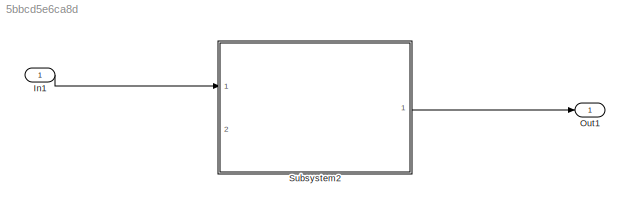
MODEL slx_5bbcd5e6ca8d
KIND model
BLOCK [Inport] In1
  IconDisplay = Port number
BLOCK [Outport] Out1
  IconDisplay = Port number
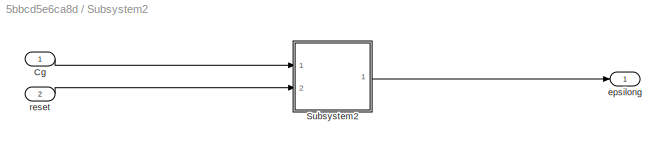
BLOCK [SubSystem] Subsystem2
  Ports = [2, 1]
  RequestExecContextInheritance = off
BLOCK [Inport] Subsystem2/Cg
  IconDisplay = Port number
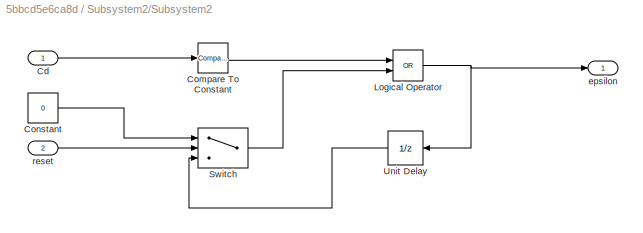
BLOCK [SubSystem] Subsystem2/Subsystem2
  Ports = [2, 1]
  RequestExecContextInheritance = off
BLOCK [Inport] Subsystem2/Subsystem2/Cd
  IconDisplay = Port number
BLOCK [Reference] Subsystem2/Subsystem2/Compare To Constant  REF=simulink/Logic and Bit
Operations/Compare
To Constant
  OutDataTypeStr = boolean
  Ports = [1, 1]
  SourceBlock = simulink/Logic and Bit\nOperations/Compare\nTo Constant
  SourceType = Compare To Constant
  ZeroCross = on
  const = 3.0
  relop = <=
BLOCK [Constant] Subsystem2/Subsystem2/Constant
  Value = 0
BLOCK [Logic] Subsystem2/Subsystem2/Logical Operator
  AllPortsSameDT = off
  Operator = OR
  OutDataTypeStr = boolean
  Ports = [2, 1]
BLOCK [Switch] Subsystem2/Subsystem2/Switch
  Criteria = u2 > Threshold
  InputSameDT = off
  SaturateOnIntegerOverflow = off
BLOCK [UnitDelay] Subsystem2/Subsystem2/Unit Delay
  InputProcessing = Elements as channels (sample based)
  SampleTime = -1
BLOCK [Outport] Subsystem2/Subsystem2/epsilon
  IconDisplay = Port number
BLOCK [Inport] Subsystem2/Subsystem2/reset
  IconDisplay = Port number
  Port = 2
BLOCK [Outport] Subsystem2/epsilong
  IconDisplay = Port number
BLOCK [Inport] Subsystem2/reset
  IconDisplay = Port number
  Port = 2
LINE In1:1 -> Subsystem2:1
LINE Subsystem2/Cg:1 -> Subsystem2/Subsystem2:1
LINE Subsystem2/Subsystem2/Cd:1 -> Subsystem2/Subsystem2/Compare To Constant:1
LINE Subsystem2/Subsystem2/Compare To Constant:1 -> Subsystem2/Subsystem2/Logical Operator:1
LINE Subsystem2/Subsystem2/Constant:1 -> Subsystem2/Subsystem2/Switch:1
NET Subsystem2/Subsystem2/Logical Operator:1 -> Subsystem2/Subsystem2/Unit Delay:1, Subsystem2/Subsystem2/epsilon:1
LINE Subsystem2/Subsystem2/Switch:1 -> Subsystem2/Subsystem2/Logical Operator:2
LINE Subsystem2/Subsystem2/Unit Delay:1 -> Subsystem2/Subsystem2/Switch:3
LINE Subsystem2/Subsystem2/reset:1 -> Subsystem2/Subsystem2/Switch:2
LINE Subsystem2/Subsystem2:1 -> Subsystem2/epsilong:1
LINE Subsystem2/reset:1 -> Subsystem2/Subsystem2:2
LINE Subsystem2:1 -> Out1:1
note: NET lines group one-source signal fan-out (src -> all destinations, sorted); 1:1 wires keep LINE
